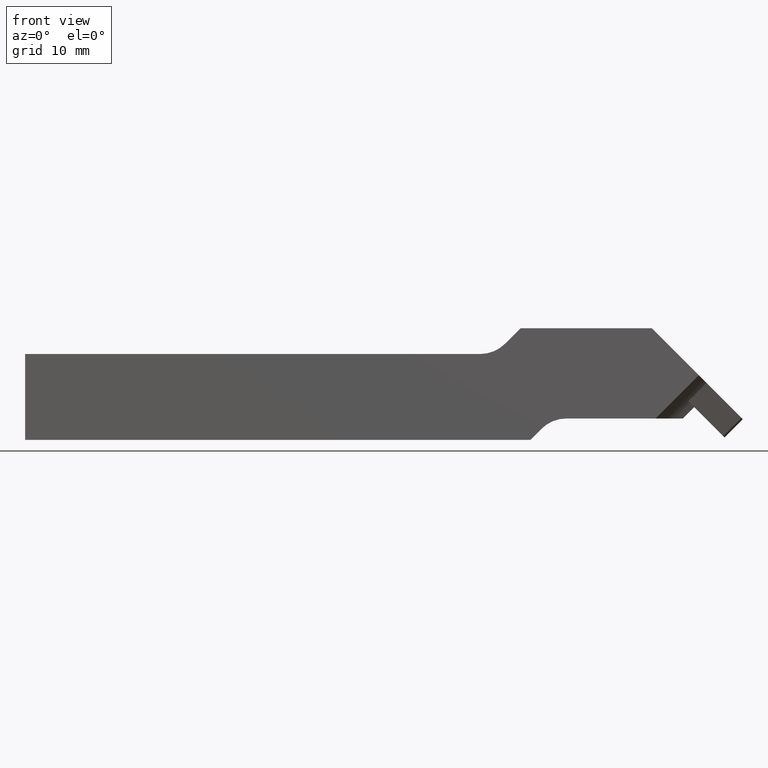
[diagram: clean part render]
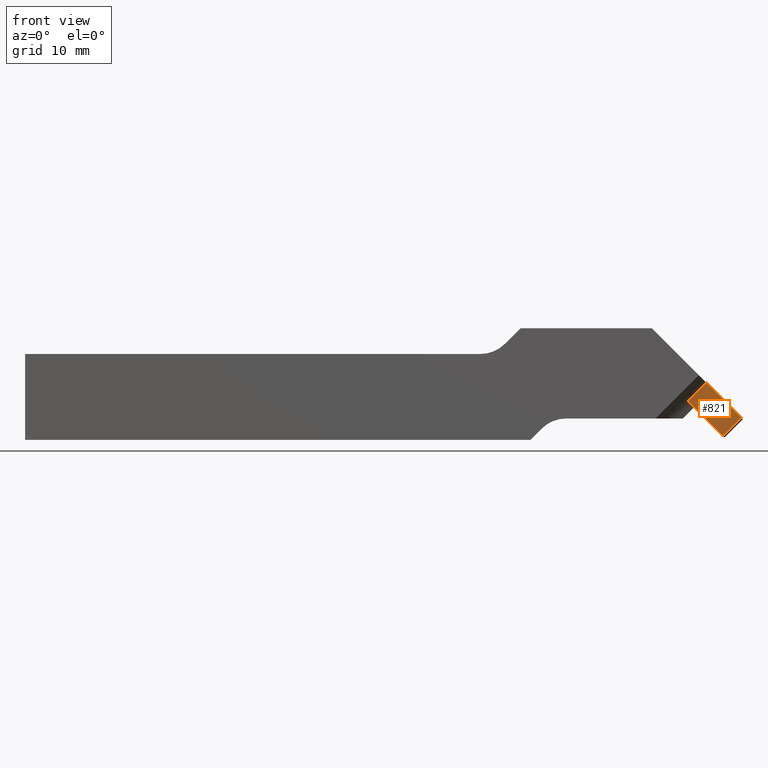
[diagram: same view with one face highlighted and labeled with its STEP entity id]
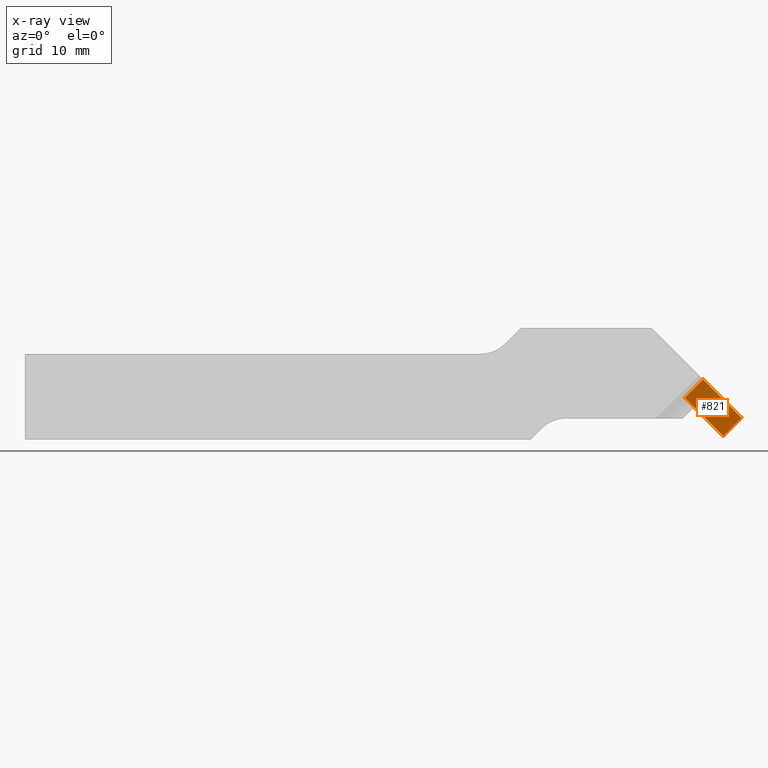
[diagram: x-ray of the same camera — body ghosted, the highlighted face saturated]
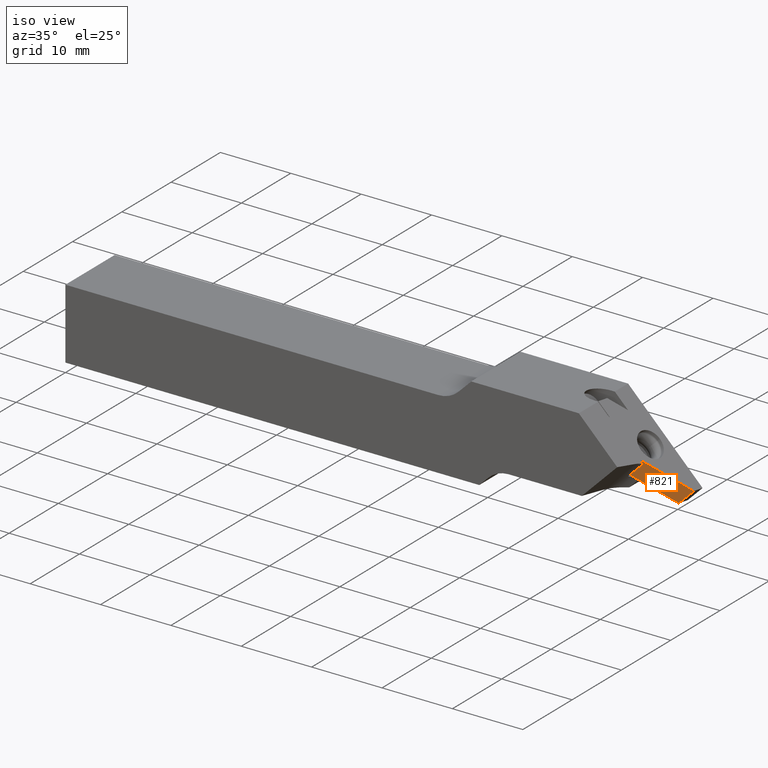
[diagram: same view with one face highlighted and labeled with its STEP entity id]
A machine part, front view. The second image highlights one B-rep face of the part: STEP entity #821.
The next image is the same camera in x-ray: the body ghosted, the highlighted face saturated — about 0% of this face is hidden behind the body in this view.
A second angle (iso view) of the same face is appended — the face is thin or edge-on in the first view.
In plain terms, the highlighted planar face has unit normal (0.4056, -0.8192, -0.4056).
Its self-contained STEP definition (entity closure, byte-faithful):
#63 = CARTESIAN_POINT ( 'NONE',  ( 4.435249157630879679, -14.78008861051218581, -3.000000000000120792 ) ) ;
#78 = EDGE_CURVE ( 'NONE', #1095, #561, #564, .T. ) ;
#107 = CARTESIAN_POINT ( 'NONE',  ( 6.938893903907228378E-15, -8.445896366636874930, -3.000000000000037303 ) ) ;
#133 = ORIENTED_EDGE ( 'NONE', *, *, #78, .T. ) ;
#161 = FACE_OUTER_BOUND ( 'NONE', #555, .T. ) ;
#163 = DIRECTION ( 'NONE',  ( -4.357006572847169399E-15, 1.808498695766025086E-30, 1.000000000000000000 ) ) ;
#184 = VECTOR ( 'NONE', #466, 999.9999999999998863 ) ;
#331 = VERTEX_POINT ( 'NONE', #787 ) ;
#361 = EDGE_CURVE ( 'NONE', #561, #802, #1196, .T. ) ;
#368 = VECTOR ( 'NONE', #1025, 1000.000000000000000 ) ;
#382 = ORIENTED_EDGE ( 'NONE', *, *, #1060, .F. ) ;
#393 = CARTESIAN_POINT ( 'NONE',  ( 4.435249157630853034, -14.78008861051217160, -1.249000902703301108E-13 ) ) ;
#443 = CARTESIAN_POINT ( 'NONE',  ( 4.435249157630853034, -14.78008861051217160, -1.249000902703301108E-13 ) ) ;
#466 = DIRECTION ( 'NONE',  ( 0.5735764363510388320, -0.8191520442889970166, -1.165734175856399576E-15 ) ) ;
#483 = DIRECTION ( 'NONE',  ( 0.5735764363510388320, -0.8191520442889967946, -1.165734175856399576E-15 ) ) ;
#484 = CARTESIAN_POINT ( 'NONE',  ( 4.435249157630879679, -14.78008861051218581, -3.000000000000120792 ) ) ;
#555 = EDGE_LOOP ( 'NONE', ( #382, #1309, #133, #1179 ) ) ;
#561 = VERTEX_POINT ( 'NONE', #1228 ) ;
#564 = LINE ( 'NONE', #984, #184 ) ;
#621 = LINE ( 'NONE', #107, #368 ) ;
#644 = CARTESIAN_POINT ( 'NONE',  ( 6.938893903907228378E-15, -8.445896366636874930, -3.000000000000037303 ) ) ;
#706 = PLANE ( 'NONE',  #1108 ) ;
#762 = LINE ( 'NONE', #443, #1273 ) ;
#787 = CARTESIAN_POINT ( 'NONE',  ( -6.938893903907228378E-15, -8.445896366636986841, -9.714451465470119729E-14 ) ) ;
#802 = VERTEX_POINT ( 'NONE', #393 ) ;
#821 = ADVANCED_FACE ( 'NONE', ( #161 ), #706, .T. ) ;
#899 = DIRECTION ( 'NONE',  ( -0.8191520442889969056, -0.5735764363510389430, 3.996802888650550135E-15 ) ) ;
#907 = EDGE_CURVE ( 'NONE', #1095, #331, #621, .T. ) ;
#984 = CARTESIAN_POINT ( 'NONE',  ( 4.435249157630879679, -14.78008861051218581, -3.000000000000120792 ) ) ;
#1025 = DIRECTION ( 'NONE',  ( -4.357006572847169399E-15, 1.808498695766025086E-30, 1.000000000000000000 ) ) ;
#1060 = EDGE_CURVE ( 'NONE', #331, #802, #762, .T. ) ;
#1067 = VECTOR ( 'NONE', #163, 1000.000000000000000 ) ;
#1095 = VERTEX_POINT ( 'NONE', #644 ) ;
#1108 = AXIS2_PLACEMENT_3D ( 'NONE', #63, #899, #483 ) ;
#1179 = ORIENTED_EDGE ( 'NONE', *, *, #361, .T. ) ;
#1196 = LINE ( 'NONE', #484, #1067 ) ;
#1228 = CARTESIAN_POINT ( 'NONE',  ( 4.435249157630879679, -14.78008861051218581, -3.000000000000120792 ) ) ;
#1268 = DIRECTION ( 'NONE',  ( 0.5735764363510388320, -0.8191520442889970166, -1.165734175856399576E-15 ) ) ;
#1273 = VECTOR ( 'NONE', #1268, 999.9999999999998863 ) ;
#1309 = ORIENTED_EDGE ( 'NONE', *, *, #907, .F. ) ;